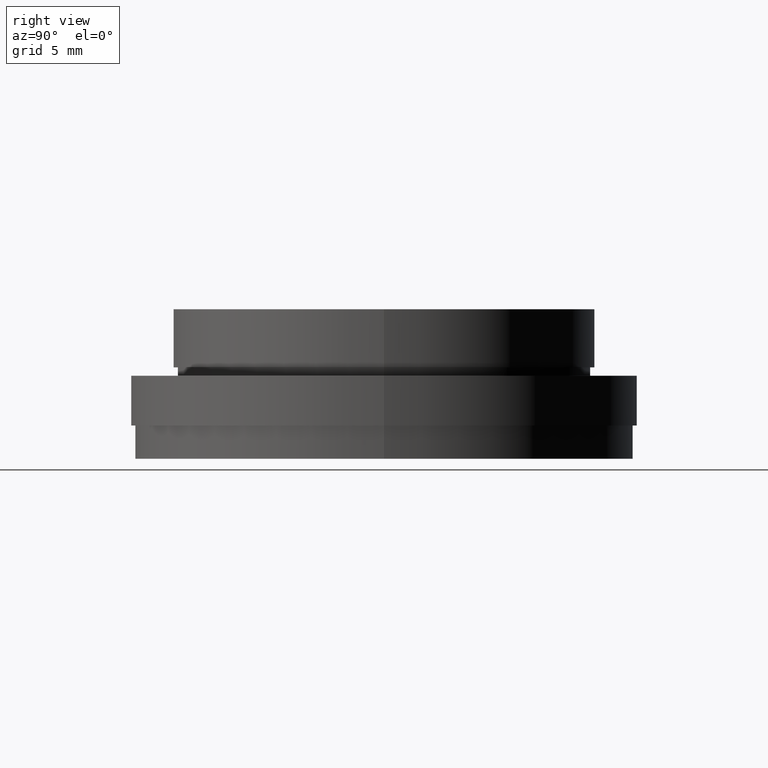
[diagram: clean part render]
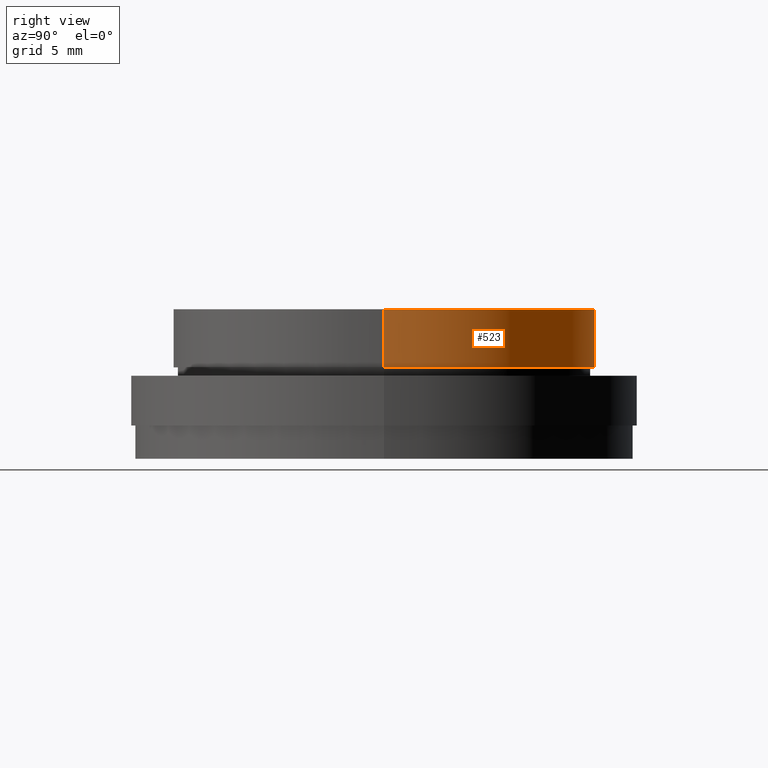
[diagram: same view with one face highlighted and labeled with its STEP entity id]
A machine part, right view. The second image highlights one B-rep face of the part: STEP entity #523.
In plain terms, the highlighted cylindrical surface (partial cylindrical patch) has radius 12.7 mm, axis along (-0, -0, 1).
Its self-contained STEP definition (entity closure, byte-faithful):
#6 = DIRECTION ( 'NONE',  ( -0.0000000000000000000, -0.0000000000000000000, 1.000000000000000000 ) ) ;
#20 = ORIENTED_EDGE ( 'NONE', *, *, #254, .F. ) ;
#28 = DIRECTION ( 'NONE',  ( -0.0000000000000000000, -0.0000000000000000000, 1.000000000000000000 ) ) ;
#58 = DIRECTION ( 'NONE',  ( -0.0000000000000000000, -0.0000000000000000000, 1.000000000000000000 ) ) ;
#112 = VERTEX_POINT ( 'NONE', #496 ) ;
#120 = EDGE_CURVE ( 'NONE', #673, #112, #304, .T. ) ;
#172 = DIRECTION ( 'NONE',  ( -0.0000000000000000000, -0.0000000000000000000, 1.000000000000000000 ) ) ;
#254 = EDGE_CURVE ( 'NONE', #604, #370, #720, .T. ) ;
#304 = CIRCLE ( 'NONE', #629, 12.69999999999999900 ) ;
#306 = CARTESIAN_POINT ( 'NONE',  ( -12.70000000000015900, 1.555301434917158000E-015, 0.0000000000000000000 ) ) ;
#322 = CYLINDRICAL_SURFACE ( 'NONE', #647, 12.70000000000007900 ) ;
#331 = CARTESIAN_POINT ( 'NONE',  ( 0.0000000000000000000, 0.0000000000000000000, 222.4624572051069700 ) ) ;
#357 = CARTESIAN_POINT ( 'NONE',  ( 12.70000000000007900, 0.0000000000000000000, 222.4624572051069700 ) ) ;
#366 = DIRECTION ( 'NONE',  ( -0.0000000000000000000, -0.0000000000000000000, 1.000000000000000000 ) ) ;
#369 = FACE_OUTER_BOUND ( 'NONE', #524, .T. ) ;
#370 = VERTEX_POINT ( 'NONE', #306 ) ;
#389 = EDGE_CURVE ( 'NONE', #112, #370, #839, .T. ) ;
#396 = VECTOR ( 'NONE', #28, 1000.000000000000000 ) ;
#416 = LINE ( 'NONE', #357, #396 ) ;
#422 = CARTESIAN_POINT ( 'NONE',  ( 12.69999999999999900, 0.0000000000000000000, -3.500000000000003100 ) ) ;
#453 = CARTESIAN_POINT ( 'NONE',  ( 0.0000000000000000000, 0.0000000000000000000, 0.0000000000000000000 ) ) ;
#459 = ORIENTED_EDGE ( 'NONE', *, *, #645, .F. ) ;
#466 = DIRECTION ( 'NONE',  ( 1.000000000000000000, 0.0000000000000000000, 0.0000000000000000000 ) ) ;
#483 = VECTOR ( 'NONE', #172, 1000.000000000000000 ) ;
#486 = ORIENTED_EDGE ( 'NONE', *, *, #389, .T. ) ;
#496 = CARTESIAN_POINT ( 'NONE',  ( -12.69999999999999900, 1.555301434917143600E-015, -3.500000000000003100 ) ) ;
#517 = DIRECTION ( 'NONE',  ( 1.000000000000000000, 0.0000000000000000000, 0.0000000000000000000 ) ) ;
#523 = ADVANCED_FACE ( 'NONE', ( #369 ), #322, .T. ) ;
#524 = EDGE_LOOP ( 'NONE', ( #589, #486, #20, #459 ) ) ;
#589 = ORIENTED_EDGE ( 'NONE', *, *, #120, .T. ) ;
#604 = VERTEX_POINT ( 'NONE', #749 ) ;
#629 = AXIS2_PLACEMENT_3D ( 'NONE', #757, #366, #831 ) ;
#632 = CARTESIAN_POINT ( 'NONE',  ( -12.70000000000007900, 1.555301434917148300E-015, 222.4624572051069700 ) ) ;
#645 = EDGE_CURVE ( 'NONE', #673, #604, #416, .T. ) ;
#647 = AXIS2_PLACEMENT_3D ( 'NONE', #331, #6, #466 ) ;
#652 = AXIS2_PLACEMENT_3D ( 'NONE', #453, #58, #517 ) ;
#673 = VERTEX_POINT ( 'NONE', #422 ) ;
#720 = CIRCLE ( 'NONE', #652, 12.70000000000015700 ) ;
#749 = CARTESIAN_POINT ( 'NONE',  ( 12.70000000000015700, 0.0000000000000000000, 0.0000000000000000000 ) ) ;
#757 = CARTESIAN_POINT ( 'NONE',  ( 0.0000000000000000000, 0.0000000000000000000, -3.500000000000003100 ) ) ;
#831 = DIRECTION ( 'NONE',  ( 1.000000000000000000, 0.0000000000000000000, 0.0000000000000000000 ) ) ;
#839 = LINE ( 'NONE', #632, #483 ) ;